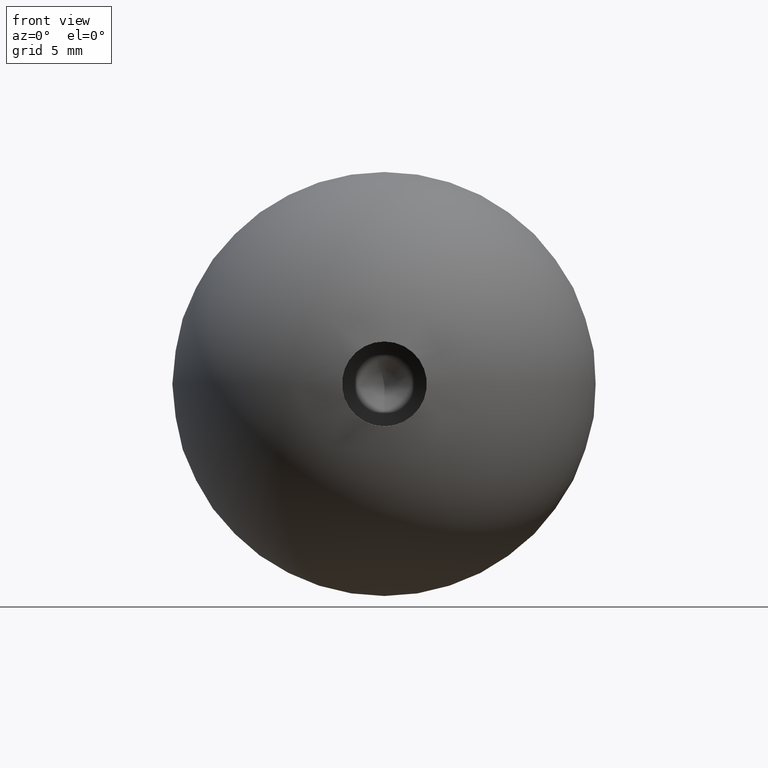
[diagram: clean part render]
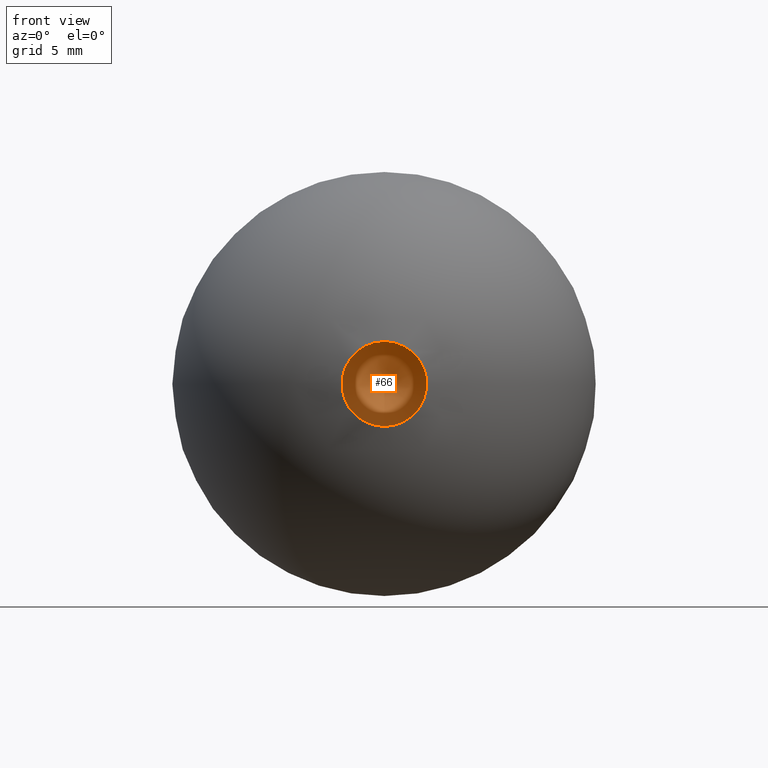
[diagram: same view with one face highlighted and labeled with its STEP entity id]
A machine part, front view. The second image highlights one B-rep face of the part: STEP entity #66.
In plain terms, the highlighted conical surface has half-angle 59 deg.
Its self-contained STEP definition (entity closure, byte-faithful):
#4 = DIRECTION ( 'NONE',  ( -0.000000000000000000, -1.000000000000000000, -0.000000000000000000 ) ) ;
#39 = EDGE_CURVE ( 'NONE', #71, #71, #50, .T. ) ;
#41 = FACE_OUTER_BOUND ( 'NONE', #110, .T. ) ;
#44 = AXIS2_PLACEMENT_3D ( 'NONE', #51, #4, #53 ) ;
#50 = CIRCLE ( 'NONE', #117, 2.499999999999986677 ) ;
#51 = CARTESIAN_POINT ( 'NONE',  ( 0.000000000000000000, 17.00000000000000000, 0.000000000000000000 ) ) ;
#53 = DIRECTION ( 'NONE',  ( 0.000000000000000000, 0.000000000000000000, -1.000000000000000000 ) ) ;
#60 = DIRECTION ( 'NONE',  ( -0.000000000000000000, -1.000000000000000000, -0.000000000000000000 ) ) ;
#63 = DIRECTION ( 'NONE',  ( 0.000000000000000000, 0.000000000000000000, -1.000000000000000000 ) ) ;
#66 = ADVANCED_FACE ( 'NONE', ( #41 ), #103, .F. ) ;
#71 = VERTEX_POINT ( 'NONE', #75 ) ;
#75 = CARTESIAN_POINT ( 'NONE',  ( 0.000000000000000000, 17.00000000000000000, -2.499999999999986677 ) ) ;
#102 = ORIENTED_EDGE ( 'NONE', *, *, #39, .T. ) ;
#103 = CONICAL_SURFACE ( 'NONE', #44, 2.499999999999986677, 1.029744258676651647 ) ;
#107 = CARTESIAN_POINT ( 'NONE',  ( 0.000000000000000000, 17.00000000000000000, 0.000000000000000000 ) ) ;
#110 = EDGE_LOOP ( 'NONE', ( #102 ) ) ;
#117 = AXIS2_PLACEMENT_3D ( 'NONE', #107, #60, #63 ) ;